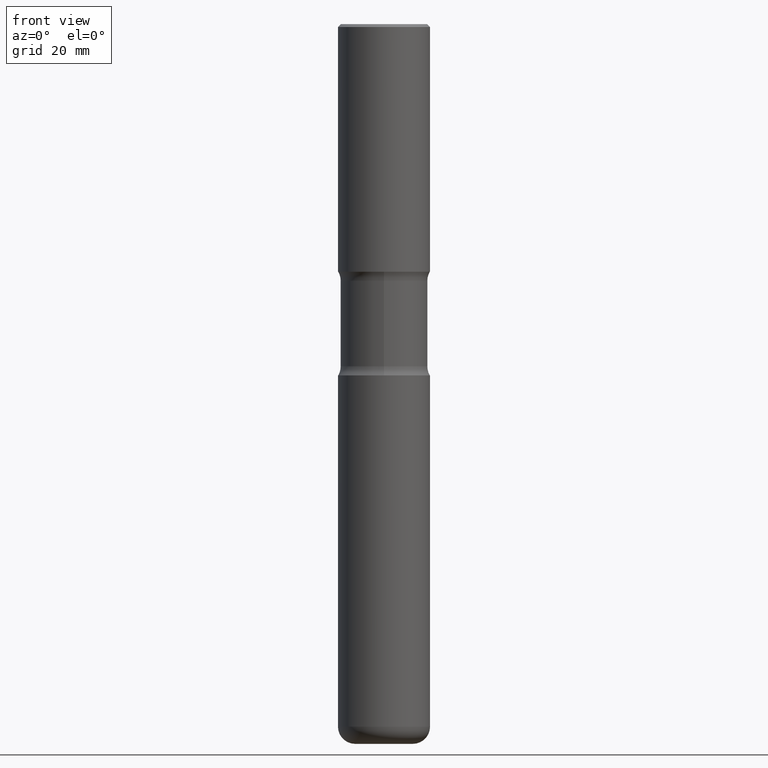
[diagram: clean part render]
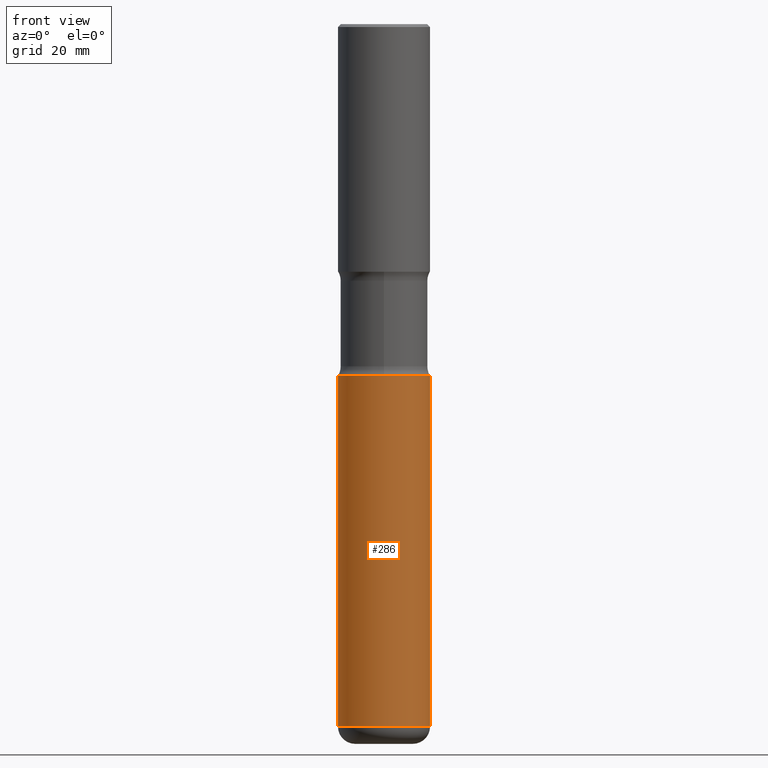
[diagram: same view with one face highlighted and labeled with its STEP entity id]
A machine part, front view. The second image highlights one B-rep face of the part: STEP entity #286.
In plain terms, the highlighted cylindrical surface (partial cylindrical patch) has radius 7.9997 mm, axis along (-0, 0, 1).
Its self-contained STEP definition (entity closure, byte-faithful):
#2 = DIRECTION ( 'NONE',  ( -2.445468806185136597E-29, 3.491481338843145583E-15, 1.000000000000000000 ) ) ;
#26 = CARTESIAN_POINT ( 'NONE',  ( 0.3149500000000002853, -2.199284095337291843E-15, 1.535751875536931531E-29 ) ) ;
#27 = DIRECTION ( 'NONE',  ( -2.445468806185136877E-29, 3.491481338843145188E-15, 1.000000000000000000 ) ) ;
#36 = ORIENTED_EDGE ( 'NONE', *, *, #165, .T. ) ;
#38 = ORIENTED_EDGE ( 'NONE', *, *, #396, .F. ) ;
#109 = VECTOR ( 'NONE', #240, 39.37007874015748143 ) ;
#110 = AXIS2_PLACEMENT_3D ( 'NONE', #467, #354, #305 ) ;
#130 = CARTESIAN_POINT ( 'NONE',  ( 1.174632031674906636E-28, -1.677063231486527962E-14, -4.803299999999999237 ) ) ;
#136 = LINE ( 'NONE', #191, #495 ) ;
#165 = EDGE_CURVE ( 'NONE', #382, #289, #203, .T. ) ;
#177 = DIRECTION ( 'NONE',  ( 1.000000000000000000, -6.982962677686267499E-15, 4.876176775795936353E-29 ) ) ;
#178 = CARTESIAN_POINT ( 'NONE',  ( -0.3149500000000002298, -1.034003260283904930E-14, -2.401599999999999291 ) ) ;
#179 = CARTESIAN_POINT ( 'NONE',  ( 0.000000000000000000, 0.000000000000000000, 0.000000000000000000 ) ) ;
#183 = DIRECTION ( 'NONE',  ( -2.445468806185136597E-29, 3.491481338843145583E-15, 1.000000000000000000 ) ) ;
#191 = CARTESIAN_POINT ( 'NONE',  ( -0.3149500000000002853, 2.237854346276437562E-15, -1.549218606675783797E-29 ) ) ;
#192 = ORIENTED_EDGE ( 'NONE', *, *, #268, .T. ) ;
#203 = LINE ( 'NONE', #26, #109 ) ;
#207 = AXIS2_PLACEMENT_3D ( 'NONE', #179, #2, #177 ) ;
#221 = CYLINDRICAL_SURFACE ( 'NONE', #207, 0.3149500000000002853 ) ;
#240 = DIRECTION ( 'NONE',  ( -2.445468806185136877E-29, 3.491481338843145188E-15, 1.000000000000000000 ) ) ;
#266 = VERTEX_POINT ( 'NONE', #343 ) ;
#268 = EDGE_CURVE ( 'NONE', #266, #382, #453, .T. ) ;
#286 = ADVANCED_FACE ( 'NONE', ( #390 ), #221, .T. ) ;
#289 = VERTEX_POINT ( 'NONE', #300 ) ;
#300 = CARTESIAN_POINT ( 'NONE',  ( 0.3149500000000002298, -1.058442567870298713E-14, -2.401599999999999291 ) ) ;
#305 = DIRECTION ( 'NONE',  ( 1.000000000000000000, -6.982962677686264344E-15, 0.000000000000000000 ) ) ;
#315 = EDGE_CURVE ( 'NONE', #525, #289, #521, .T. ) ;
#330 = ORIENTED_EDGE ( 'NONE', *, *, #315, .F. ) ;
#343 = CARTESIAN_POINT ( 'NONE',  ( -0.3149500000000003963, -1.453277796858884048E-14, -4.803299999999999237 ) ) ;
#348 = DIRECTION ( 'NONE',  ( 1.000000000000000000, -6.982962677686268288E-15, 0.000000000000000000 ) ) ;
#354 = DIRECTION ( 'NONE',  ( -2.445468806185136597E-29, 3.491481338843145583E-15, 1.000000000000000000 ) ) ;
#382 = VERTEX_POINT ( 'NONE', #442 ) ;
#390 = FACE_OUTER_BOUND ( 'NONE', #461, .T. ) ;
#396 = EDGE_CURVE ( 'NONE', #266, #525, #136, .T. ) ;
#442 = CARTESIAN_POINT ( 'NONE',  ( 0.3149500000000003963, -1.896991641020257106E-14, -4.803299999999999237 ) ) ;
#453 = CIRCLE ( 'NONE', #544, 0.3149500000000003408 ) ;
#461 = EDGE_LOOP ( 'NONE', ( #38, #192, #36, #330 ) ) ;
#467 = CARTESIAN_POINT ( 'NONE',  ( 5.873037884934222106E-29, -8.385141583365695685E-15, -2.401599999999999291 ) ) ;
#495 = VECTOR ( 'NONE', #27, 39.37007874015748143 ) ;
#521 = CIRCLE ( 'NONE', #110, 0.3149500000000002298 ) ;
#525 = VERTEX_POINT ( 'NONE', #178 ) ;
#544 = AXIS2_PLACEMENT_3D ( 'NONE', #130, #183, #348 ) ;